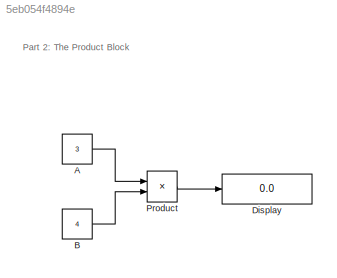
MODEL slx_5eb054f4894e
KIND model
CONFIG AbsTol = auto
CONFIG EnableMultiTasking = off
CONFIG FixedStep = auto
CONFIG MaxStep = auto
CONFIG MinStep = auto
CONFIG RelTol = 1e-3
CONFIG SampleTimeConstraint = Unconstrained
CONFIG SolverName = VariableStepAuto
CONFIG StartTime = 0.0
CONFIG StopTime = 10.0
BLOCK [Constant] A
  Value = 3
BLOCK [Constant] B
  Value = 4
BLOCK [Display] Display
  Decimation = 1
  Ports = [1]
BLOCK [Product] Product
  Ports = [2, 1]
ANNOTATION (root): P art 2: The Product Block
LINE A:1 -> Product:1
LINE B:1 -> Product:2
LINE Product:1 -> Display:1
